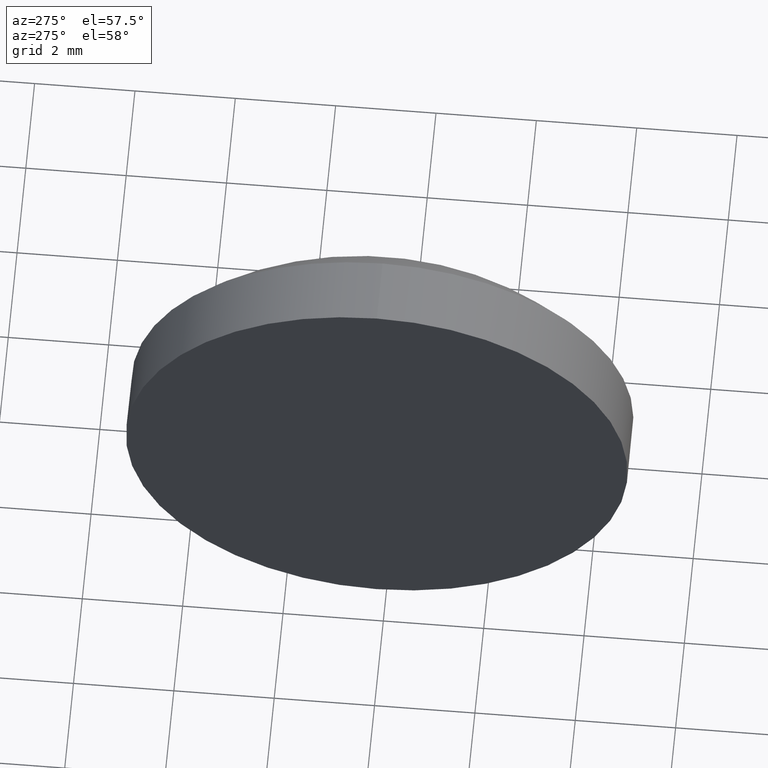
[diagram: clean part render]
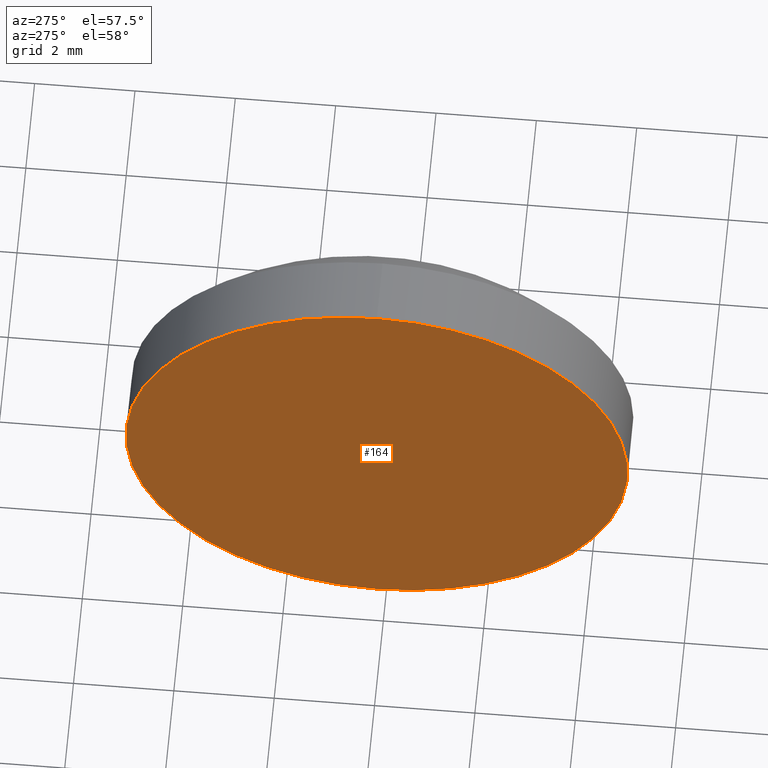
[diagram: same view with one face highlighted and labeled with its STEP entity id]
A machine part, auxiliary view. The second image highlights one B-rep face of the part: STEP entity #164.
In plain terms, the highlighted planar face has unit normal (1, 0, 0).
Its self-contained STEP definition (entity closure, byte-faithful):
#5 = DIRECTION ( 'NONE',  ( -1.000000000000000000, -0.0000000000000000000, -0.0000000000000000000 ) ) ;
#9 = AXIS2_PLACEMENT_3D ( 'NONE', #103, #67, #50 ) ;
#17 = CARTESIAN_POINT ( 'NONE',  ( 408.5965939749438000, 122.1833303763285700, 0.0000000000000000000 ) ) ;
#23 = PLANE ( 'NONE',  #9 ) ;
#28 = CARTESIAN_POINT ( 'NONE',  ( 408.5965939749438000, 122.1833303763285700, -4.999999999999990200 ) ) ;
#30 = ORIENTED_EDGE ( 'NONE', *, *, #110, .T. ) ;
#37 = CARTESIAN_POINT ( 'NONE',  ( 408.5965939749438000, 122.1833303763285700, 4.999999999999990200 ) ) ;
#40 = VERTEX_POINT ( 'NONE', #28 ) ;
#50 = DIRECTION ( 'NONE',  ( 0.0000000000000000000, 0.0000000000000000000, -1.000000000000000000 ) ) ;
#63 = CARTESIAN_POINT ( 'NONE',  ( 408.5965939749438000, 122.1833303763285700, 0.0000000000000000000 ) ) ;
#65 = AXIS2_PLACEMENT_3D ( 'NONE', #63, #5, #159 ) ;
#67 = DIRECTION ( 'NONE',  ( 1.000000000000000000, 0.0000000000000000000, 0.0000000000000000000 ) ) ;
#68 = CIRCLE ( 'NONE', #65, 4.999999999999990200 ) ;
#76 = DIRECTION ( 'NONE',  ( -1.000000000000000000, -0.0000000000000000000, -0.0000000000000000000 ) ) ;
#85 = EDGE_LOOP ( 'NONE', ( #127, #30 ) ) ;
#103 = CARTESIAN_POINT ( 'NONE',  ( 408.5965939749438000, 122.1833303763285700, 0.0000000000000000000 ) ) ;
#107 = FACE_OUTER_BOUND ( 'NONE', #85, .T. ) ;
#110 = EDGE_CURVE ( 'NONE', #40, #172, #68, .T. ) ;
#117 = DIRECTION ( 'NONE',  ( 0.0000000000000000000, 0.0000000000000000000, 1.000000000000000000 ) ) ;
#123 = CIRCLE ( 'NONE', #162, 4.999999999999990200 ) ;
#125 = EDGE_CURVE ( 'NONE', #172, #40, #123, .T. ) ;
#127 = ORIENTED_EDGE ( 'NONE', *, *, #125, .T. ) ;
#159 = DIRECTION ( 'NONE',  ( 0.0000000000000000000, 0.0000000000000000000, 1.000000000000000000 ) ) ;
#162 = AXIS2_PLACEMENT_3D ( 'NONE', #17, #76, #117 ) ;
#164 = ADVANCED_FACE ( 'NONE', ( #107 ), #23, .F. ) ;
#172 = VERTEX_POINT ( 'NONE', #37 ) ;